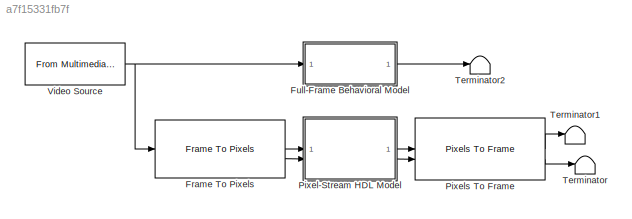
MODEL slx_a7f15331fb7f
KIND model
CONFIG AbsTol = auto
CONFIG EnableMultiTasking = off
CONFIG FixedStep = auto
CONFIG MaxStep = auto
CONFIG MinStep = auto
CONFIG PreLoadFcn = thresholdValue = 7;\nalpha = 0.8;
CONFIG RelTol = 1e-3
CONFIG SampleTimeConstraint = Unconstrained
CONFIG SolverName = FixedStepDiscrete
CONFIG StartTime = 0.0
CONFIG StopTime = 402*324*10
BLOCK [Reference] Frame To Pixels  REF=visionhdlio/Frame To Pixels
  SourceBlock = visionhdlio/Frame To Pixels
  SourceType = Frame To Pixels
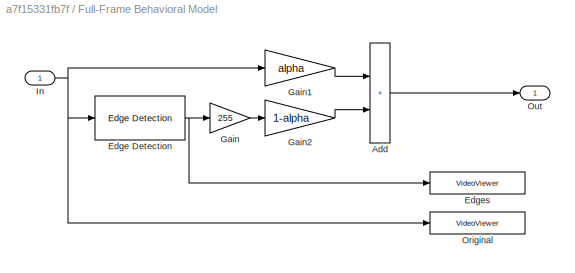
BLOCK [SubSystem] Full-Frame Behavioral Model
BLOCK [Sum] Full-Frame Behavioral Model/Add
  IconShape = rectangular
  OutDataTypeStr = uint8
  SaturateOnIntegerOverflow = on
BLOCK [Reference] Full-Frame Behavioral Model/Edge Detection  REF=visionanalysis/Edge Detection
  SourceBlock = visionanalysis/Edge Detection
  SourceType = Edge Detection
BLOCK [VideoViewer] Full-Frame Behavioral Model/Edges
  FigPos = [454.333333333333 430.666666666667 378 284]
  ScopeSpecificationString = vipscopes.VideoViewerScopeCfg('CurrentConfiguration', extmgr.ConfigurationSet(extmgr.Configuration('Core','General UI',true),extmgr.Configuration('Core','Source UI',true),extmgr.Configuration('Sources','WiredSimulink',true),extmgr.Configuration('Visuals','Video',true,'AxesProperties',struct('Color',[1 1 1],'XColor',[0.15 0.15 0.15],'YColor',[0.15 0.15 0.15],'ZColor',[0.15 0.15 0.15],'XGrid','off',...<+633ch>
  colormapValue = gray(256)
BLOCK [Gain] Full-Frame Behavioral Model/Gain
  Gain = 255
  OutDataTypeStr = uint8
BLOCK [Gain] Full-Frame Behavioral Model/Gain1
  Gain = alpha
  OutDataTypeStr = uint8
BLOCK [Gain] Full-Frame Behavioral Model/Gain2
  Gain = 1-alpha
  OutDataTypeStr = uint8
BLOCK [Inport] Full-Frame Behavioral Model/In
BLOCK [VideoViewer] Full-Frame Behavioral Model/Original
  FigPos = [40 427.333333333333 366 282]
  ScopeSpecificationString = vipscopes.VideoViewerScopeCfg('CurrentConfiguration', extmgr.ConfigurationSet(extmgr.Configuration('Core','General UI',true),extmgr.Configuration('Core','Source UI',true),extmgr.Configuration('Sources','WiredSimulink',true),extmgr.Configuration('Visuals','Video',true,'AxesProperties',struct('Color',[1 1 1],'XColor',[0.15 0.15 0.15],'YColor',[0.15 0.15 0.15],'ZColor',[0.15 0.15 0.15],'XGrid','off',...<+619ch>
  colormapValue = gray(256)
BLOCK [Outport] Full-Frame Behavioral Model/Out
  VectorParamsAs1DForOutWhenUnconnected = off
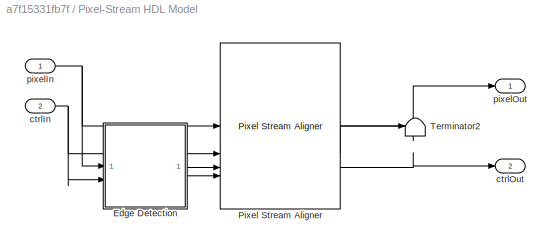
BLOCK [SubSystem] Pixel-Stream HDL Model
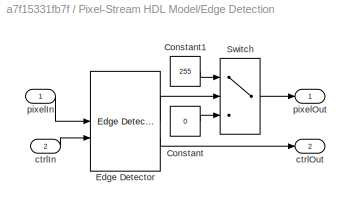
BLOCK [SubSystem] Pixel-Stream HDL Model/Edge Detection
BLOCK [Constant] Pixel-Stream HDL Model/Edge Detection/Constant
  OutDataTypeStr = uint8
  SampleTime = -1
  Value = 0
BLOCK [Constant] Pixel-Stream HDL Model/Edge Detection/Constant1
  OutDataTypeStr = uint8
  SampleTime = -1
  Value = 255
BLOCK [Reference] Pixel-Stream HDL Model/Edge Detection/Edge Detector  REF=visionhdlanalysis/Edge Detector
  SourceBlock = visionhdlanalysis/Edge Detector
  SourceType = Edge Detector
BLOCK [Switch] Pixel-Stream HDL Model/Edge Detection/Switch
  Criteria = u2 ~= 0
  InputSameDT = off
  NameLocation = top
  SaturateOnIntegerOverflow = off
BLOCK [Inport] Pixel-Stream HDL Model/Edge Detection/ctrlIn
  Port = 2
BLOCK [Outport] Pixel-Stream HDL Model/Edge Detection/ctrlOut
  Port = 2
  VectorParamsAs1DForOutWhenUnconnected = off
BLOCK [Inport] Pixel-Stream HDL Model/Edge Detection/pixelIn
BLOCK [Outport] Pixel-Stream HDL Model/Edge Detection/pixelOut
  VectorParamsAs1DForOutWhenUnconnected = off
BLOCK [Reference] Pixel-Stream HDL Model/Pixel Stream Aligner  REF=visionhdlutilities/Pixel Stream Aligner
  SourceBlock = visionhdlutilities/Pixel Stream Aligner
  SourceType = visionhdl.PixelStreamAligner
BLOCK [Terminator] Pixel-Stream HDL Model/Terminator2
BLOCK [Inport] Pixel-Stream HDL Model/ctrlIn
  Port = 2
BLOCK [Outport] Pixel-Stream HDL Model/ctrlOut
  Port = 2
  VectorParamsAs1DForOutWhenUnconnected = off
BLOCK [Inport] Pixel-Stream HDL Model/pixelIn
BLOCK [Outport] Pixel-Stream HDL Model/pixelOut
  VectorParamsAs1DForOutWhenUnconnected = off
BLOCK [Reference] Pixels To Frame  REF=visionhdlio/Pixels To Frame
  SourceBlock = visionhdlio/Pixels To Frame
  SourceType = Pixels To Frame
BLOCK [Terminator] Terminator
BLOCK [Terminator] Terminator1
BLOCK [Terminator] Terminator2
BLOCK [Reference] Video Source  REF=dspvision/From Multimedia File
  SourceBlock = dspvision/From Multimedia File
  SourceType = From Multimedia File
LINE Frame To Pixels:1 -> Pixel-Stream HDL Model:1
LINE Frame To Pixels:2 -> Pixel-Stream HDL Model:2
LINE Full-Frame Behavioral Model/Add:1 -> Full-Frame Behavioral Model/Out:1
NET Full-Frame Behavioral Model/Edge Detection:1 -> Full-Frame Behavioral Model/Edges:1, Full-Frame Behavioral Model/Gain:1
LINE Full-Frame Behavioral Model/Gain1:1 -> Full-Frame Behavioral Model/Add:1
LINE Full-Frame Behavioral Model/Gain2:1 -> Full-Frame Behavioral Model/Add:2
LINE Full-Frame Behavioral Model/Gain:1 -> Full-Frame Behavioral Model/Gain2:1
NET Full-Frame Behavioral Model/In:1 -> Full-Frame Behavioral Model/Edge Detection:1, Full-Frame Behavioral Model/Gain1:1, Full-Frame Behavioral Model/Original:1
LINE Full-Frame Behavioral Model:1 -> Terminator2:1
LINE Pixel-Stream HDL Model/Edge Detection/Constant1:1 -> Pixel-Stream HDL Model/Edge Detection/Switch:1
LINE Pixel-Stream HDL Model/Edge Detection/Constant:1 -> Pixel-Stream HDL Model/Edge Detection/Switch:3
LINE Pixel-Stream HDL Model/Edge Detection/Edge Detector:1 -> Pixel-Stream HDL Model/Edge Detection/Switch:2
LINE Pixel-Stream HDL Model/Edge Detection/Edge Detector:2 -> Pixel-Stream HDL Model/Edge Detection/ctrlOut:1
LINE Pixel-Stream HDL Model/Edge Detection/Switch:1 -> Pixel-Stream HDL Model/Edge Detection/pixelOut:1
LINE Pixel-Stream HDL Model/Edge Detection/ctrlIn:1 -> Pixel-Stream HDL Model/Edge Detection/Edge Detector:2
LINE Pixel-Stream HDL Model/Edge Detection/pixelIn:1 -> Pixel-Stream HDL Model/Edge Detection/Edge Detector:1
LINE Pixel-Stream HDL Model/Edge Detection:1 -> Pixel-Stream HDL Model/Pixel Stream Aligner:3
LINE Pixel-Stream HDL Model/Edge Detection:2 -> Pixel-Stream HDL Model/Pixel Stream Aligner:4
LINE Pixel-Stream HDL Model/Pixel Stream Aligner:1 -> Pixel-Stream HDL Model/pixelOut:1
LINE Pixel-Stream HDL Model/Pixel Stream Aligner:2 -> Pixel-Stream HDL Model/Terminator2:1
LINE Pixel-Stream HDL Model/Pixel Stream Aligner:3 -> Pixel-Stream HDL Model/ctrlOut:1
NET Pixel-Stream HDL Model/ctrlIn:1 -> Pixel-Stream HDL Model/Edge Detection:2, Pixel-Stream HDL Model/Pixel Stream Aligner:2
NET Pixel-Stream HDL Model/pixelIn:1 -> Pixel-Stream HDL Model/Edge Detection:1, Pixel-Stream HDL Model/Pixel Stream Aligner:1
LINE Pixel-Stream HDL Model:1 -> Pixels To Frame:1
LINE Pixel-Stream HDL Model:2 -> Pixels To Frame:2
LINE Pixels To Frame:1 -> Terminator1:1
LINE Pixels To Frame:2 -> Terminator:1
NET Video Source:1 -> Frame To Pixels:1, Full-Frame Behavioral Model:1
note: NET lines group one-source signal fan-out (src -> all destinations, sorted); 1:1 wires keep LINE
